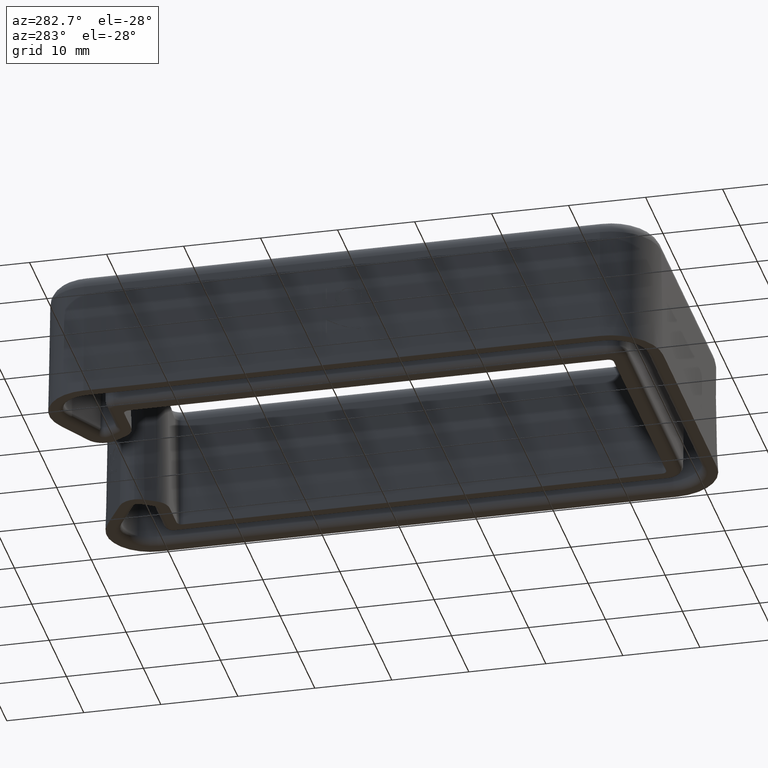
[diagram: clean part render]
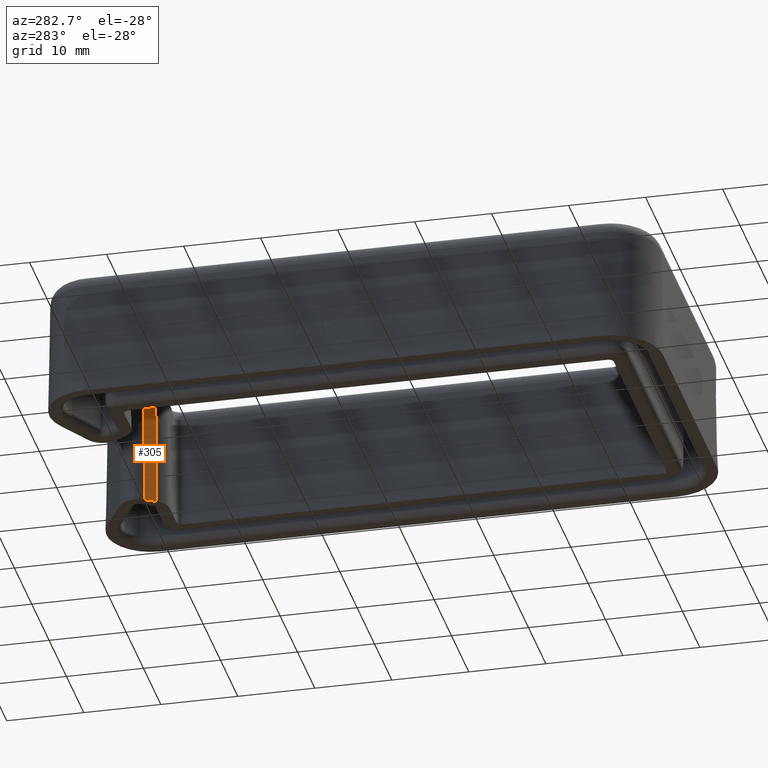
[diagram: same view with one face highlighted and labeled with its STEP entity id]
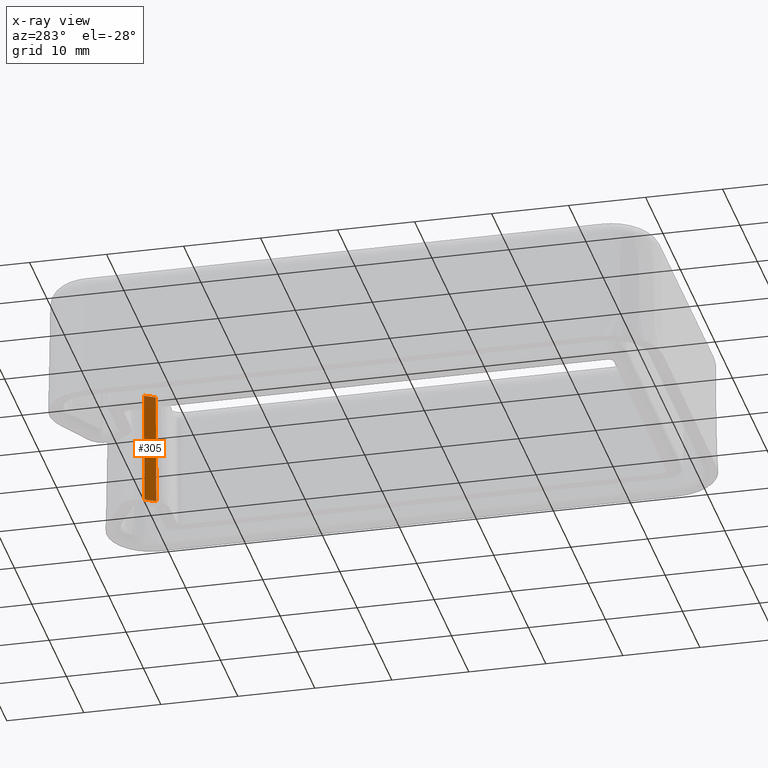
[diagram: x-ray of the same camera — body ghosted, the highlighted face saturated]
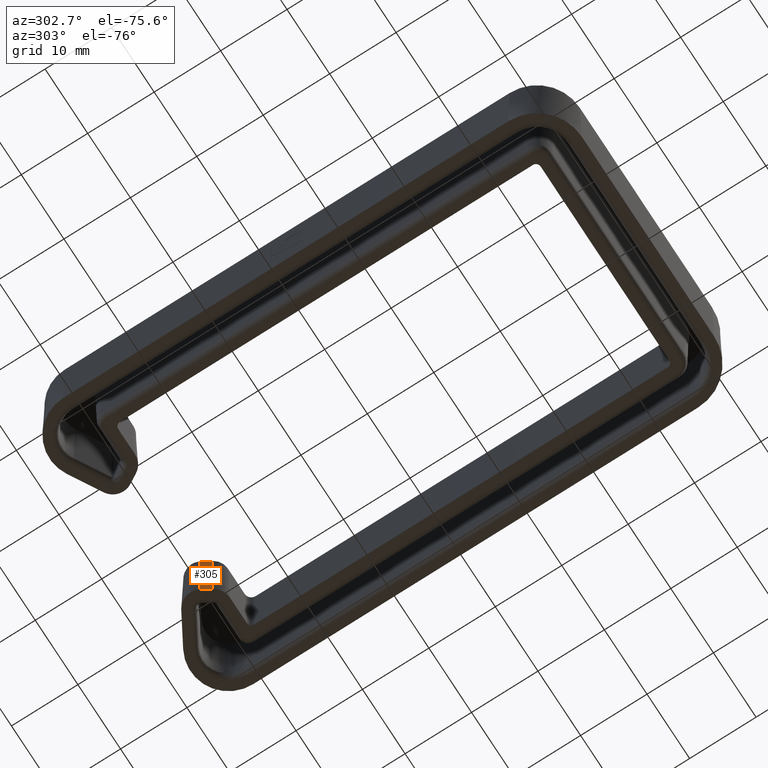
[diagram: same view with one face highlighted and labeled with its STEP entity id]
A machine part, auxiliary view. The second image highlights one B-rep face of the part: STEP entity #305.
The next image is the same camera in x-ray: the body ghosted, the highlighted face saturated — about 11% of this face is hidden behind the body in this view.
A second angle (auxiliary view) of the same face is appended — the face is thin or edge-on in the first view.
In plain terms, the highlighted planar face has unit normal (0.8659, 0.4999, -0.0175).
Its self-contained STEP definition (entity closure, byte-faithful):
#305=ADVANCED_FACE('',(#680),#681,.F.);
#680=FACE_OUTER_BOUND('',#1201,.T.);
#681=PLANE('',#1202);
#1201=EDGE_LOOP('',(#2921,#2922,#2923,#2924));
#1202=AXIS2_PLACEMENT_3D('',#2925,#2926,#2927);
#2921=ORIENTED_EDGE('',*,*,#3989,.T.);
#2922=ORIENTED_EDGE('',*,*,#3990,.T.);
#2923=ORIENTED_EDGE('',*,*,#3897,.F.);
#2924=ORIENTED_EDGE('',*,*,#3936,.T.);
#2925=CARTESIAN_POINT('',(38.9487584754673,17.7479546391559,17.0));
#2926=DIRECTION('',(0.865893503920242,0.499923847579083,-0.0174524064372835));
#2927=DIRECTION('',(-0.500000000000887,0.866025403783926,1.35826596027465E-17));
#3897=EDGE_CURVE('',#4682,#4684,#4685,.T.);
#3936=EDGE_CURVE('',#4682,#4755,#4757,.F.);
#3989=EDGE_CURVE('',#4755,#4852,#4854,.T.);
#3990=EDGE_CURVE('',#4852,#4684,#4855,.F.);
#4682=VERTEX_POINT('',#6745);
#4684=VERTEX_POINT('',#6747);
#4685=LINE('',#6748,#6749);
#4755=VERTEX_POINT('',#6834);
#4757=LINE('',#6836,#6837);
#4852=VERTEX_POINT('',#6960);
#4854=LINE('',#6962,#6963);
#4855=LINE('',#6964,#6965);
#6745=CARTESIAN_POINT('',(8.17926945851487,70.448800731766,0.0));
#6747=CARTESIAN_POINT('',(8.40654504294172,70.5800183516154,15.0349048128745));
#6748=CARTESIAN_POINT('',(8.43625046260795,70.5971687836561,17.0));
#6749=VECTOR('',#7483,1000.0);
#6834=CARTESIAN_POINT('',(8.97153443161027,69.0765575453105,0.0));
#6836=CARTESIAN_POINT('',(38.6917774713742,17.5995865872658,0.0));
#6837=VECTOR('',#7568,1000.0);
#6960=CARTESIAN_POINT('',(9.19881001603712,69.2077751651598,15.0349048128745));
#6962=CARTESIAN_POINT('',(9.22851543570335,69.2249255972006,17.0));
#6963=VECTOR('',#7669,1000.0);
#6964=CARTESIAN_POINT('',(8.40654504294154,70.5800183516153,15.0349048128745));
#6965=VECTOR('',#7670,1000.0);
#7483=DIRECTION('',(0.0151142273318496,0.00872620321865729,0.999847695156391));
#7568=DIRECTION('',(-0.500000000000887,0.866025403783927,0.0));
#7669=DIRECTION('',(0.0151142273318497,0.00872620321865724,0.999847695156391));
#7670=DIRECTION('',(0.500000000000887,-0.866025403783926,7.65391909438073E-19));